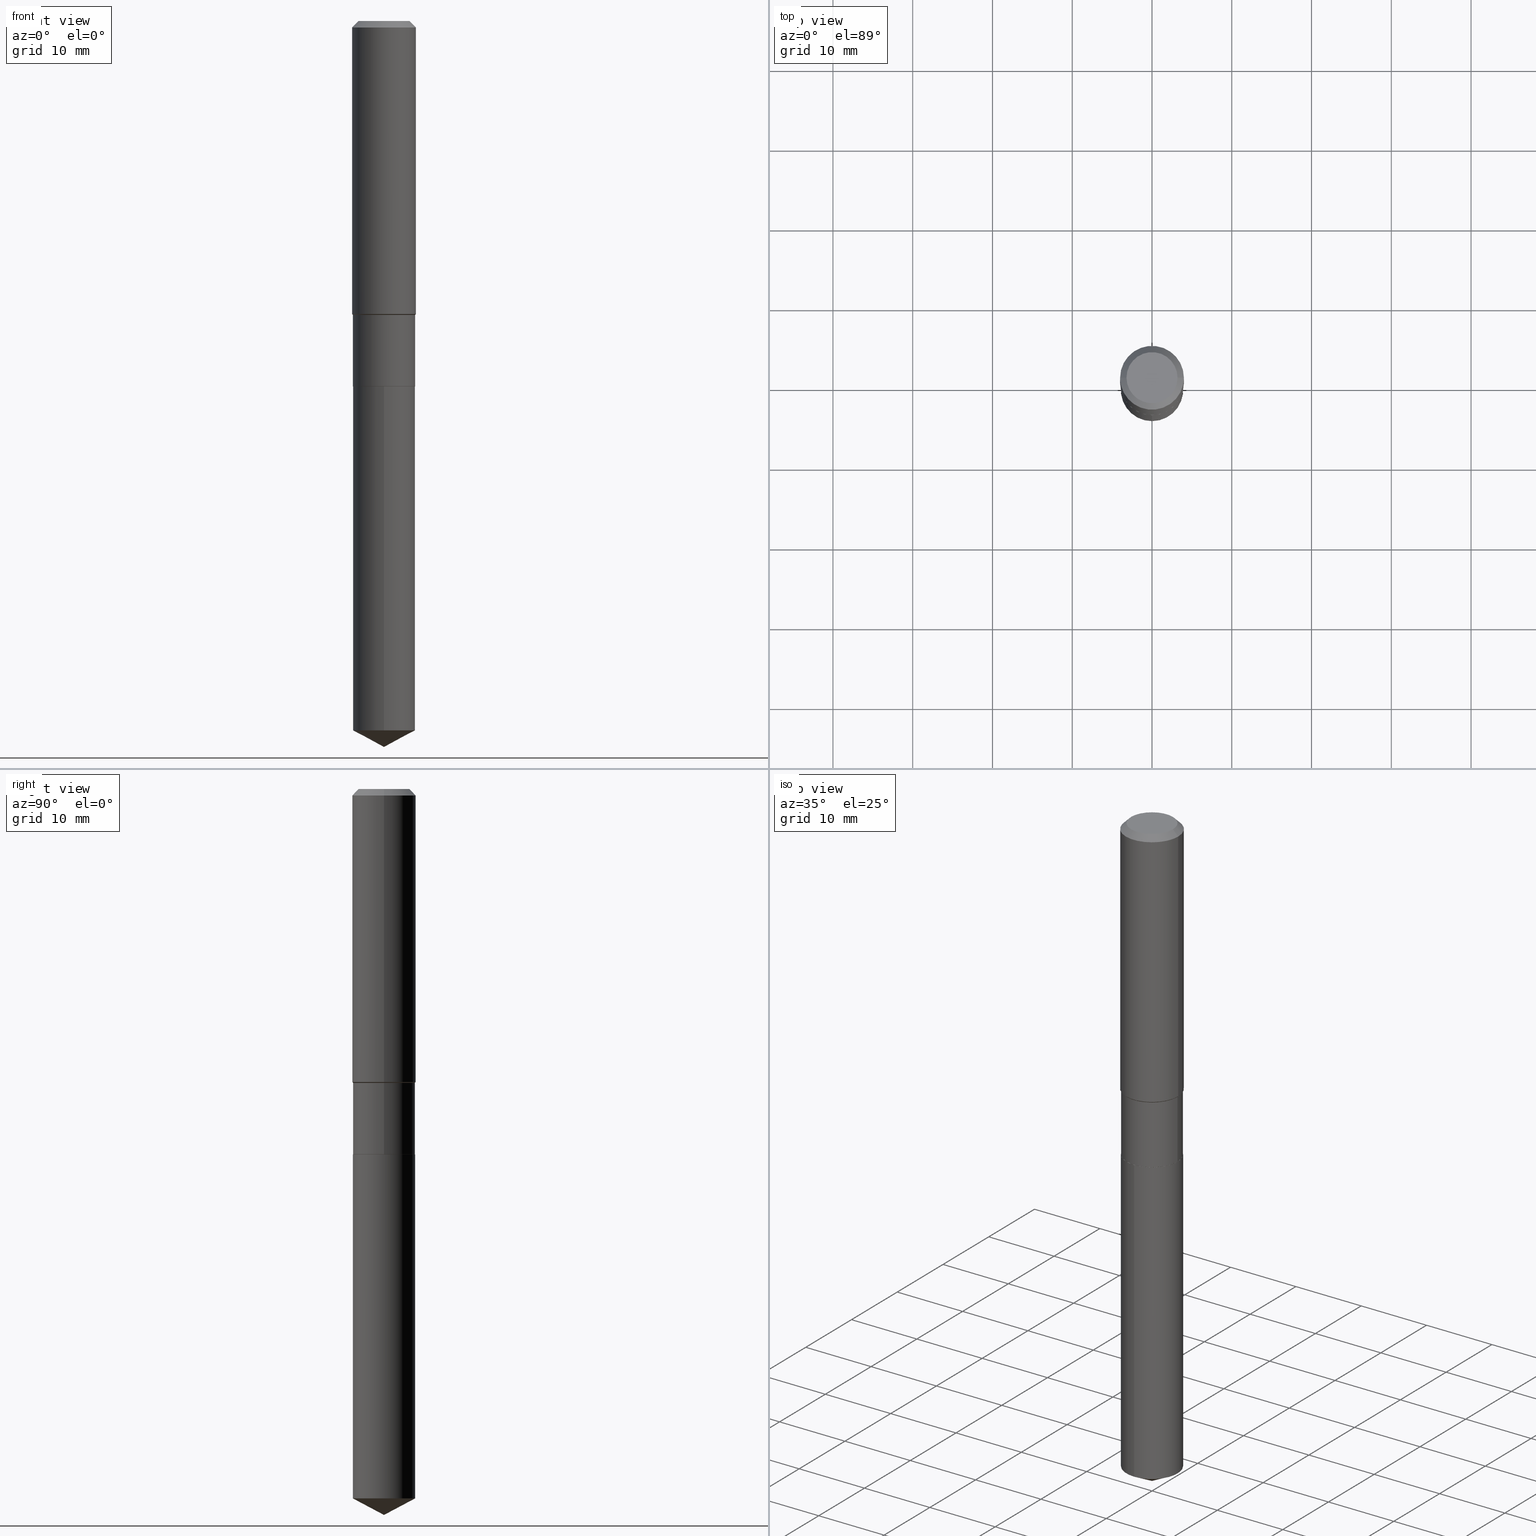
[diagram: canonical four-view strip — front | top / right | iso, engineering-drawing reading convention]
A machine part, canonical four-view strip (front | top / right | iso — engineering-drawing reading convention). The complete STEP part file that produces these views, byte-faithful:
ISO-10303-21;
HEADER;
FILE_DESCRIPTION (( 'STEP AP203' ),
    '1' );
FILE_NAME ('65048.STEP',
    '2024-04-24T20:09:53',
    ( '' ),
    ( '' ),
    'SwSTEP 2.0',
    'SolidWorks 2023',
    '' );
FILE_SCHEMA (( 'CONFIG_CONTROL_DESIGN' ));
ENDSEC;

DATA;
#1 = CARTESIAN_POINT ( 'NONE',  ( 8.761380437849166344E-29, -1.250893112933926441E-14, -3.582699999999999996 ) ) ;
#2 = MECHANICAL_CONTEXT ( 'NONE', #141, 'mechanical' ) ;
#3 = AXIS2_PLACEMENT_3D ( 'NONE', #340, #295, #257 ) ;
#4 = FACE_OUTER_BOUND ( 'NONE', #106, .T. ) ;
#5 = CARTESIAN_POINT ( 'NONE',  ( 0.1575000000000001676, -6.148673211769718717E-15, -1.446050000000000058 ) ) ;
#6 = DIRECTION ( 'NONE',  ( -2.445496404088996242E-29, 3.491441817074043371E-15, 1.000000000000000000 ) ) ;
#7 = VECTOR ( 'NONE', #409, 39.37007874015748143 ) ;
#8 = AXIS2_PLACEMENT_3D ( 'NONE', #165, #206, #19 ) ;
#9 = CARTESIAN_POINT ( 'NONE',  ( 8.761479966929646186E-29, -1.250878859803117568E-14, -3.582699999999999996 ) ) ;
#10 = LINE ( 'NONE', #465, #388 ) ;
#11 = LINE ( 'NONE', #198, #334 ) ;
#12 = ADVANCED_FACE ( 'NONE', ( #36 ), #442, .T. ) ;
#13 = CIRCLE ( 'NONE', #239, 0.1575000000000001676 ) ;
#14 = DIRECTION ( 'NONE',  ( 1.000000000000000000, -6.982962677686265922E-15, 0.000000000000000000 ) ) ;
#15 = EDGE_CURVE ( 'NONE', #282, #144, #66, .T. ) ;
#16 = DIRECTION ( 'NONE',  ( -2.445468806185136597E-29, 3.491481338843145583E-15, 1.000000000000000000 ) ) ;
#17 = DESIGN_CONTEXT ( 'detailed design', #399, 'design' ) ;
#18 = AXIS2_PLACEMENT_3D ( 'NONE', #125, #16, #315 ) ;
#19 = DIRECTION ( 'NONE',  ( -6.982962677686265133E-15, -1.000000000000000000, 3.558252026915353702E-15 ) ) ;
#20 = DIRECTION ( 'NONE',  ( -1.000000000000000000, 6.982962677686265922E-15, 0.000000000000000000 ) ) ;
#21 = VECTOR ( 'NONE', #183, 39.37007874015748143 ) ;
#22 = VECTOR ( 'NONE', #300, 39.37007874015748143 ) ;
#23 = ORIENTED_EDGE ( 'NONE', *, *, #331, .F. ) ;
#24 = ORIENTED_EDGE ( 'NONE', *, *, #272, .T. ) ;
#25 =( NAMED_UNIT ( * ) PLANE_ANGLE_UNIT ( ) SI_UNIT ( $, .RADIAN. ) );
#26 = ORIENTED_EDGE ( 'NONE', *, *, #393, .F. ) ;
#27 = AXIS2_PLACEMENT_3D ( 'NONE', #80, #379, #44 ) ;
#28 = ORIENTED_EDGE ( 'NONE', *, *, #446, .T. ) ;
#29 = ORIENTED_EDGE ( 'NONE', *, *, #446, .F. ) ;
#30 = DATE_AND_TIME ( #254, #159 ) ;
#31 = AXIS2_PLACEMENT_3D ( 'NONE', #276, #351, #59 ) ;
#32 = VERTEX_POINT ( 'NONE', #226 ) ;
#33 = APPROVAL_DATE_TIME ( #30, #162 ) ;
#34 = DIRECTION ( 'NONE',  ( 1.000000000000000000, -6.982962677686267499E-15, 4.876176775795936353E-29 ) ) ;
#35 = EDGE_CURVE ( 'NONE', #477, #142, #291, .T. ) ;
#36 = FACE_OUTER_BOUND ( 'NONE', #332, .T. ) ;
#37 = VECTOR ( 'NONE', #448, 39.37007874015748143 ) ;
#38 = CARTESIAN_POINT ( 'NONE',  ( 4.409669351313038346E-29, -6.295839150201959750E-15, -1.803200000000000136 ) ) ;
#39 = CARTESIAN_POINT ( 'NONE',  ( 0.1530499999999999916, -7.364581588021842889E-15, -1.803200000000000136 ) ) ;
#40 = CARTESIAN_POINT ( 'NONE',  ( 0.000000000000000000, 0.000000000000000000, 0.000000000000000000 ) ) ;
#41 = ADVANCED_FACE ( 'NONE', ( #76 ), #222, .T. ) ;
#42 = DIRECTION ( 'NONE',  ( -2.445496404088996242E-29, 3.491441817074043371E-15, 1.000000000000000000 ) ) ;
#43 = AXIS2_PLACEMENT_3D ( 'NONE', #55, #204, #14 ) ;
#44 = DIRECTION ( 'NONE',  ( 1.000000000000000000, -6.982962677686265922E-15, 0.000000000000000000 ) ) ;
#45 = CC_DESIGN_PERSON_AND_ORGANIZATION_ASSIGNMENT ( #443, #78, ( #91 ) ) ;
#46 = DIRECTION ( 'NONE',  ( 1.000000000000000000, -6.982962677686269077E-15, 0.000000000000000000 ) ) ;
#47 = CARTESIAN_POINT ( 'NONE',  ( 0.000000000000000000, 0.000000000000000000, 0.000000000000000000 ) ) ;
#48 = DIRECTION ( 'NONE',  ( -2.445468806185136597E-29, 3.491481338843145583E-15, 1.000000000000000000 ) ) ;
#49 = CARTESIAN_POINT ( 'NONE',  ( 0.000000000000000000, 0.000000000000000000, 0.000000000000000000 ) ) ;
#50 = LINE ( 'NONE', #386, #130 ) ;
#51 = CARTESIAN_POINT ( 'NONE',  ( -0.1260000000000000009, 9.348441284752484904E-16, 3.860086710906114178E-18 ) ) ;
#52 = FACE_OUTER_BOUND ( 'NONE', #435, .T. ) ;
#53 = CARTESIAN_POINT ( 'NONE',  ( -1.072233919158640357E-15, -0.1535500000000122045, -3.501056016768379742 ) ) ;
#54 = CC_DESIGN_PERSON_AND_ORGANIZATION_ASSIGNMENT ( #143, #338, ( #381 ) ) ;
#55 = CARTESIAN_POINT ( 'NONE',  ( 7.703226739483226971E-31, -1.099816621735597538E-16, -0.03150000000000019451 ) ) ;
#56 = ADVANCED_FACE ( 'NONE', ( #114 ), #324, .T. ) ;
#57 = DIRECTION ( 'NONE',  ( -2.445468806185136597E-29, 3.491481338843145583E-15, 1.000000000000000000 ) ) ;
#58 = CONICAL_SURFACE ( 'NONE', #271, 0.1535499999999999365, 0.7853981633974634891 ) ;
#59 = DIRECTION ( 'NONE',  ( -1.000000000000000000, 6.982962677686265922E-15, 0.000000000000000000 ) ) ;
#60 = EDGE_LOOP ( 'NONE', ( #174, #176, #487, #180 ) ) ;
#61 = EDGE_LOOP ( 'NONE', ( #105, #208, #164, #323 ) ) ;
#62 = EDGE_CURVE ( 'NONE', #209, #474, #434, .T. ) ;
#63 = ORIENTED_EDGE ( 'NONE', *, *, #308, .T. ) ;
#64 = DIMENSIONAL_EXPONENTS ( 1.000000000000000000, 0.000000000000000000, 0.000000000000000000, 0.000000000000000000, 0.000000000000000000, 0.000000000000000000, 0.000000000000000000 ) ;
#65 = ORIENTED_EDGE ( 'NONE', *, *, #405, .F. ) ;
#66 = CIRCLE ( 'NONE', #297, 0.1535499999999999921 ) ;
#67 = ORIENTED_EDGE ( 'NONE', *, *, #321, .T. ) ;
#68 = EDGE_CURVE ( 'NONE', #137, #99, #344, .T. ) ;
#69 = ORIENTED_EDGE ( 'NONE', *, *, #157, .T. ) ;
#70 = DATE_AND_TIME ( #287, #214 ) ;
#71 = LOCAL_TIME ( 16, 9, 53.00000000000000000, #107 ) ;
#72 = ORIENTED_EDGE ( 'NONE', *, *, #228, .F. ) ;
#73 = MANIFOLD_SOLID_BREP ( 'Body-Move/Copy2[2]', #248 ) ;
#74 = DIRECTION ( 'NONE',  ( -2.445468806185136877E-29, 3.491481338843145188E-15, 1.000000000000000000 ) ) ;
#75 = AXIS2_PLACEMENT_3D ( 'NONE', #230, #6, #305 ) ;
#76 = FACE_OUTER_BOUND ( 'NONE', #359, .T. ) ;
#77 = VECTOR ( 'NONE', #79, 39.37007874015748143 ) ;
#78 = PERSON_AND_ORGANIZATION_ROLE ( 'design_supplier' ) ;
#79 = DIRECTION ( 'NONE',  ( 0.7071067811866199593, -2.468850131083015945E-15, 0.7071067811864750752 ) ) ;
#80 = CARTESIAN_POINT ( 'NONE',  ( 4.409669351313038346E-29, -6.295839150201959750E-15, -1.803200000000000136 ) ) ;
#81 = APPROVAL_DATE_TIME ( #417, #100 ) ;
#82 = CARTESIAN_POINT ( 'NONE',  ( 0.000000000000000000, 0.000000000000000000, 0.000000000000000000 ) ) ;
#83 = CARTESIAN_POINT ( 'NONE',  ( 4.409669351313038346E-29, -6.295839150201959750E-15, -1.803200000000000136 ) ) ;
#84 = APPROVAL_ROLE ( '' ) ;
#85 = EDGE_CURVE ( 'NONE', #99, #158, #221, .T. ) ;
#86 = LINE ( 'NONE', #255, #273 ) ;
#87 = DIRECTION ( 'NONE',  ( -2.445468806185136597E-29, 3.491481338843145583E-15, 1.000000000000000000 ) ) ;
#88 = CARTESIAN_POINT ( 'NONE',  ( 7.703226739483226971E-31, -1.099816621735597538E-16, -0.03150000000000019451 ) ) ;
#89 = FACE_OUTER_BOUND ( 'NONE', #362, .T. ) ;
#90 = DIRECTION ( 'NONE',  ( -2.445468806185136597E-29, 3.491481338843145583E-15, 1.000000000000000000 ) ) ;
#91 = PRODUCT_DEFINITION_FORMATION_WITH_SPECIFIED_SOURCE ( 'ANY', '', #197, .NOT_KNOWN. ) ;
#92 = CARTESIAN_POINT ( 'NONE',  ( -1.072233919158681970E-15, -0.1535500000000062926, -1.803199999999999470 ) ) ;
#93 = DIRECTION ( 'NONE',  ( -6.982962677686266711E-15, -1.000000000000000000, 3.541896320645574279E-15 ) ) ;
#94 = ADVANCED_FACE ( 'NONE', ( #420 ), #384, .T. ) ;
#95 = AXIS2_PLACEMENT_3D ( 'NONE', #270, #428, #423 ) ;
#96 = FACE_OUTER_BOUND ( 'NONE', #470, .T. ) ;
#97 = CARTESIAN_POINT ( 'NONE',  ( 0.1575000000000000011, -1.209798283909146741E-15, -0.03150000000000019451 ) ) ;
#98 = VERTEX_POINT ( 'NONE', #5 ) ;
#99 = VERTEX_POINT ( 'NONE', #53 ) ;
#100 = APPROVAL ( #261, 'UNSPECIFIED' ) ;
#101 = EDGE_LOOP ( 'NONE', ( #357, #231, #207, #23 ) ) ;
#102 = AXIS2_PLACEMENT_3D ( 'NONE', #313, #57, #241 ) ;
#103 = ORIENTED_EDGE ( 'NONE', *, *, #240, .T. ) ;
#104 = AXIS2_PLACEMENT_3D ( 'NONE', #83, #190, #184 ) ;
#105 = ORIENTED_EDGE ( 'NONE', *, *, #129, .F. ) ;
#106 = EDGE_LOOP ( 'NONE', ( #280, #138 ) ) ;
#107 = COORDINATED_UNIVERSAL_TIME_OFFSET ( 5, 0, .BEHIND. ) ;
#108 =( GEOMETRIC_REPRESENTATION_CONTEXT ( 3 ) GLOBAL_UNCERTAINTY_ASSIGNED_CONTEXT ( ( #322 ) ) GLOBAL_UNIT_ASSIGNED_CONTEXT ( ( #281, #25, #408 ) ) REPRESENTATION_CONTEXT ( 'NONE', 'WORKASPACE' ) );
#109 = CARTESIAN_POINT ( 'NONE',  ( -0.1535499999999999921, -4.587332304667917085E-15, -1.802700000000000191 ) ) ;
#110 = VERTEX_POINT ( 'NONE', #264 ) ;
#111 = DIRECTION ( 'NONE',  ( 1.000000000000000000, 0.000000000000000000, 0.000000000000000000 ) ) ;
#112 = CARTESIAN_POINT ( 'NONE',  ( 0.1530499999999999916, -7.364581588021842889E-15, -1.803200000000000136 ) ) ;
#113 = CIRCLE ( 'NONE', #413, 0.1535499999999999921 ) ;
#114 = FACE_OUTER_BOUND ( 'NONE', #101, .T. ) ;
#115 = COORDINATED_UNIVERSAL_TIME_OFFSET ( 5, 0, .BEHIND. ) ;
#116 = DIRECTION ( 'NONE',  ( -2.445496404088996242E-29, 3.491441817074043371E-15, 1.000000000000000000 ) ) ;
#117 = DIRECTION ( 'NONE',  ( -2.445496404088996242E-29, 3.491441817074043371E-15, 1.000000000000000000 ) ) ;
#118 = SHAPE_DEFINITION_REPRESENTATION ( #486, #169 ) ;
#119 = CC_DESIGN_APPROVAL ( #100, ( #429 ) ) ;
#120 = CARTESIAN_POINT ( 'NONE',  ( 4.408446616909946105E-29, -6.294093409532539036E-15, -1.802700000000000191 ) ) ;
#121 = ORIENTED_EDGE ( 'NONE', *, *, #293, .F. ) ;
#122 = LINE ( 'NONE', #160, #352 ) ;
#123 = DIRECTION ( 'NONE',  ( -2.445468806185136597E-29, 3.491481338843145583E-15, 1.000000000000000000 ) ) ;
#124 = DIRECTION ( 'NONE',  ( -2.445468806185136597E-29, 3.491481338843145583E-15, 1.000000000000000000 ) ) ;
#125 = CARTESIAN_POINT ( 'NONE',  ( 3.545929768968448850E-29, -5.062647941322561509E-15, -1.450000000000000178 ) ) ;
#126 = CIRCLE ( 'NONE', #18, 0.1535499999999999365 ) ;
#127 = AXIS2_PLACEMENT_3D ( 'NONE', #263, #116, #375 ) ;
#128 = DIRECTION ( 'NONE',  ( 6.982962677686265922E-15, 1.000000000000000000, -3.491441817074043765E-15 ) ) ;
#129 = EDGE_CURVE ( 'NONE', #474, #336, #50, .T. ) ;
#130 = VECTOR ( 'NONE', #461, 39.37007874015748143 ) ;
#131 = FACE_OUTER_BOUND ( 'NONE', #459, .T. ) ;
#132 = EDGE_CURVE ( 'NONE', #440, #477, #310, .T. ) ;
#133 = DIRECTION ( 'NONE',  ( 0.7071067811865452413, -7.319954787623248157E-15, -0.7071067811865497932 ) ) ;
#134 = APPROVAL_PERSON_ORGANIZATION ( #152, #100, #451 ) ;
#135 = ORIENTED_EDGE ( 'NONE', *, *, #240, .F. ) ;
#136 = EDGE_CURVE ( 'NONE', #336, #402, #113, .T. ) ;
#137 = VERTEX_POINT ( 'NONE', #9 ) ;
#138 = ORIENTED_EDGE ( 'NONE', *, *, #479, .F. ) ;
#139 = EDGE_CURVE ( 'NONE', #99, #144, #11, .T. ) ;
#140 = ORIENTED_EDGE ( 'NONE', *, *, #157, .F. ) ;
#141 = APPLICATION_CONTEXT ( 'configuration controlled 3d designs of mechanical parts and assemblies' ) ;
#142 = VERTEX_POINT ( 'NONE', #267 ) ;
#143 = PERSON_AND_ORGANIZATION ( #306, #419 ) ;
#144 = VERTEX_POINT ( 'NONE', #92 ) ;
#145 = CARTESIAN_POINT ( 'NONE',  ( 0.000000000000000000, 0.000000000000000000, 0.000000000000000000 ) ) ;
#146 = LINE ( 'NONE', #193, #7 ) ;
#147 = DIRECTION ( 'NONE',  ( -2.445496404088996242E-29, 3.491441817074043371E-15, 1.000000000000000000 ) ) ;
#148 = CALENDAR_DATE ( 2024, 24, 4 ) ;
#149 = CC_DESIGN_APPROVAL ( #162, ( #381 ) ) ;
#150 = LINE ( 'NONE', #220, #21 ) ;
#151 = ORIENTED_EDGE ( 'NONE', *, *, #15, .F. ) ;
#152 = PERSON_AND_ORGANIZATION ( #306, #419 ) ;
#153 = CARTESIAN_POINT ( 'NONE',  ( 4.409669351313038346E-29, -6.295839150201959750E-15, -1.803200000000000136 ) ) ;
#154 = ORIENTED_EDGE ( 'NONE', *, *, #132, .T. ) ;
#155 = APPLICATION_PROTOCOL_DEFINITION ( 'international standard', 'config_control_design', 1994, #399 ) ;
#156 = CARTESIAN_POINT ( 'NONE',  ( 3.536270167184016952E-29, -5.048856590034130447E-15, -1.446050000000000058 ) ) ;
#157 = EDGE_CURVE ( 'NONE', #98, #175, #13, .T. ) ;
#158 = VERTEX_POINT ( 'NONE', #161 ) ;
#159 = LOCAL_TIME ( 16, 9, 53.00000000000000000, #367 ) ;
#160 = CARTESIAN_POINT ( 'NONE',  ( 1.091038370759677758E-15, 0.1535499999999936915, -1.803200000000000580 ) ) ;
#161 = CARTESIAN_POINT ( 'NONE',  ( 1.091038370759719173E-15, 0.1535499999999877796, -3.501056016768380630 ) ) ;
#162 = APPROVAL ( #333, 'UNSPECIFIED' ) ;
#163 = DIRECTION ( 'NONE',  ( 1.000000000000000000, -6.982962677686269077E-15, 0.000000000000000000 ) ) ;
#164 = ORIENTED_EDGE ( 'NONE', *, *, #192, .T. ) ;
#165 = CARTESIAN_POINT ( 'NONE',  ( 8.561770134980978882E-29, -1.222380464651785151E-14, -3.501056016768380186 ) ) ;
#166 = DIRECTION ( 'NONE',  ( 1.000000000000000000, -6.982962677686265922E-15, 4.876281427513067258E-29 ) ) ;
#167 = CIRCLE ( 'NONE', #102, 0.1575000000000000011 ) ;
#168 = CONICAL_SURFACE ( 'NONE', #31, 0.1575000000000000011, 0.7853981633974450594 ) ;
#169 = ADVANCED_BREP_SHAPE_REPRESENTATION ( '65048', ( #396, #73, #341 ), #108 ) ;
#170 = DIRECTION ( 'NONE',  ( 2.445468806185136597E-29, -3.491481338843145583E-15, -1.000000000000000000 ) ) ;
#171 = AXIS2_PLACEMENT_3D ( 'NONE', #460, #481, #418 ) ;
#172 = CLOSED_SHELL ( 'NONE', ( #191, #365, #327, #217, #353 ) ) ;
#173 = DIRECTION ( 'NONE',  ( -2.445468806185136877E-29, 3.491481338843145188E-15, 1.000000000000000000 ) ) ;
#174 = ORIENTED_EDGE ( 'NONE', *, *, #321, .F. ) ;
#175 = VERTEX_POINT ( 'NONE', #350 ) ;
#176 = ORIENTED_EDGE ( 'NONE', *, *, #136, .T. ) ;
#177 = AXIS2_PLACEMENT_3D ( 'NONE', #40, #416, #187 ) ;
#178 = ADVANCED_FACE ( 'NONE', ( #89 ), #236, .F. ) ;
#179 = ORIENTED_EDGE ( 'NONE', *, *, #299, .F. ) ;
#180 = ORIENTED_EDGE ( 'NONE', *, *, #421, .F. ) ;
#181 = AXIS2_PLACEMENT_3D ( 'NONE', #235, #269, #93 ) ;
#182 = ORIENTED_EDGE ( 'NONE', *, *, #256, .F. ) ;
#183 = DIRECTION ( 'NONE',  ( -0.7071067811865582309, 7.493145998870392025E-15, 0.7071067811865368036 ) ) ;
#184 = DIRECTION ( 'NONE',  ( 1.000000000000000000, -6.982962677686265922E-15, 0.000000000000000000 ) ) ;
#185 = APPROVAL_ROLE ( '' ) ;
#186 = DIRECTION ( 'NONE',  ( -2.445468806185136597E-29, 3.491481338843145583E-15, 1.000000000000000000 ) ) ;
#187 = DIRECTION ( 'NONE',  ( 1.000000000000000000, -6.982962677686266711E-15, 4.876176775795935793E-29 ) ) ;
#188 = CALENDAR_DATE ( 2024, 24, 4 ) ;
#189 = DIRECTION ( 'NONE',  ( -2.445496404088996242E-29, 3.491441817074043765E-15, 1.000000000000000000 ) ) ;
#190 = DIRECTION ( 'NONE',  ( -2.445468806185136597E-29, 3.491481338843145583E-15, 1.000000000000000000 ) ) ;
#191 = ADVANCED_FACE ( 'NONE', ( #52 ), #464, .T. ) ;
#192 = EDGE_CURVE ( 'NONE', #209, #402, #216, .T. ) ;
#193 = CARTESIAN_POINT ( 'NONE',  ( 0.1575000000000000844, -1.099816621735587677E-15, 7.679978421878603638E-30 ) ) ;
#194 = DIRECTION ( 'NONE',  ( -2.445468806185136597E-29, 3.491481338843145583E-15, 1.000000000000000000 ) ) ;
#195 = DIRECTION ( 'NONE',  ( -2.445468806185136597E-29, 3.491481338843145583E-15, 1.000000000000000000 ) ) ;
#196 = DIRECTION ( 'NONE',  ( 1.000000000000000000, -6.982962677686265922E-15, 4.876281427513067258E-29 ) ) ;
#197 = PRODUCT ( '65048', '65048', '', ( #2 ) ) ;
#198 = CARTESIAN_POINT ( 'NONE',  ( -1.072233919158681970E-15, -0.1535500000000062926, -1.803199999999999470 ) ) ;
#199 = DIRECTION ( 'NONE',  ( 1.000000000000000000, -6.982962677686265922E-15, 0.000000000000000000 ) ) ;
#200 = CIRCLE ( 'NONE', #171, 0.1535499999999999365 ) ;
#201 = DIRECTION ( 'NONE',  ( -2.445468806185136597E-29, 3.491481338843145583E-15, 1.000000000000000000 ) ) ;
#202 = AXIS2_PLACEMENT_3D ( 'NONE', #82, #294, #490 ) ;
#203 = VECTOR ( 'NONE', #74, 39.37007874015748143 ) ;
#204 = DIRECTION ( 'NONE',  ( -2.445468806185136597E-29, 3.491481338843145583E-15, 1.000000000000000000 ) ) ;
#205 = APPROVAL_PERSON_ORGANIZATION ( #404, #162, #84 ) ;
#206 = DIRECTION ( 'NONE',  ( -2.445496404088996242E-29, 3.491441817074043371E-15, 1.000000000000000000 ) ) ;
#207 = ORIENTED_EDGE ( 'NONE', *, *, #228, .T. ) ;
#208 = ORIENTED_EDGE ( 'NONE', *, *, #479, .T. ) ;
#209 = VERTEX_POINT ( 'NONE', #39 ) ;
#210 = ORIENTED_EDGE ( 'NONE', *, *, #256, .T. ) ;
#211 = EDGE_LOOP ( 'NONE', ( #278, #472, #65 ) ) ;
#212 = ADVANCED_FACE ( 'NONE', ( #378 ), #385, .T. ) ;
#213 = ORIENTED_EDGE ( 'NONE', *, *, #337, .T. ) ;
#214 = LOCAL_TIME ( 16, 9, 53.00000000000000000, #330 ) ;
#215 = APPROVAL_STATUS ( 'not_yet_approved' ) ;
#216 = LINE ( 'NONE', #112, #77 ) ;
#217 = ADVANCED_FACE ( 'NONE', ( #290 ), #425, .T. ) ;
#218 = ORIENTED_EDGE ( 'NONE', *, *, #410, .F. ) ;
#219 = PERSON_AND_ORGANIZATION ( #306, #419 ) ;
#220 = CARTESIAN_POINT ( 'NONE',  ( -0.1535499999999999365, -3.971609570562927927E-15, -1.450000000000000178 ) ) ;
#221 = CIRCLE ( 'NONE', #288, 0.1535500000000000198 ) ;
#222 = CYLINDRICAL_SURFACE ( 'NONE', #177, 0.1535499999999999643 ) ;
#223 = PERSON_AND_ORGANIZATION ( #306, #419 ) ;
#224 = CIRCLE ( 'NONE', #355, 0.1535499999999999921 ) ;
#225 = PLANE ( 'NONE',  #457 ) ;
#226 = CARTESIAN_POINT ( 'NONE',  ( 0.1535499999999999365, -6.134881860481286866E-15, -1.450000000000000178 ) ) ;
#227 = SECURITY_CLASSIFICATION_LEVEL ( 'unclassified' ) ;
#228 = EDGE_CURVE ( 'NONE', #32, #98, #86, .T. ) ;
#229 = CIRCLE ( 'NONE', #438, 0.1530499999999999916 ) ;
#230 = CARTESIAN_POINT ( 'NONE',  ( 4.409669351313038346E-29, -6.295839150201959750E-15, -1.803200000000000136 ) ) ;
#231 = ORIENTED_EDGE ( 'NONE', *, *, #421, .T. ) ;
#232 = FACE_OUTER_BOUND ( 'NONE', #61, .T. ) ;
#233 = CARTESIAN_POINT ( 'NONE',  ( 8.761480839682197803E-29, -1.250878859803117410E-14, -3.582699999999999996 ) ) ;
#234 = CARTESIAN_POINT ( 'NONE',  ( -9.439721640706201686E-47, 1.347742071746726764E-32, 3.860086710912459732E-18 ) ) ;
#235 = CARTESIAN_POINT ( 'NONE',  ( -8.751795578536634995E-28, 1.249494793911983816E-13, 35.78737874015747877 ) ) ;
#236 = PLANE ( 'NONE',  #462 ) ;
#237 = DIRECTION ( 'NONE',  ( -2.445496404088996242E-29, 3.491441817074043765E-15, 1.000000000000000000 ) ) ;
#238 = LINE ( 'NONE', #391, #380 ) ;
#239 = AXIS2_PLACEMENT_3D ( 'NONE', #311, #124, #390 ) ;
#240 = EDGE_CURVE ( 'NONE', #158, #282, #122, .T. ) ;
#241 = DIRECTION ( 'NONE',  ( 1.000000000000000000, -6.982962677686265922E-15, 0.000000000000000000 ) ) ;
#242 = LENGTH_MEASURE_WITH_UNIT ( LENGTH_MEASURE( 0.02539999999999999897 ), #371 );
#243 = CC_DESIGN_PERSON_AND_ORGANIZATION_ASSIGNMENT ( #223, #455, ( #429 ) ) ;
#244 = ORIENTED_EDGE ( 'NONE', *, *, #436, .F. ) ;
#245 = ORIENTED_EDGE ( 'NONE', *, *, #400, .F. ) ;
#246 = ORIENTED_EDGE ( 'NONE', *, *, #400, .T. ) ;
#247 = ORIENTED_EDGE ( 'NONE', *, *, #358, .T. ) ;
#248 = CLOSED_SHELL ( 'NONE', ( #12, #476, #94, #453, #41, #274, #56, #212, #364, #178, #268, #489 ) ) ;
#249 = ORIENTED_EDGE ( 'NONE', *, *, #358, .F. ) ;
#250 = ORIENTED_EDGE ( 'NONE', *, *, #139, .F. ) ;
#251 = CIRCLE ( 'NONE', #43, 0.1575000000000000011 ) ;
#252 = LINE ( 'NONE', #233, #401 ) ;
#253 = ORIENTED_EDGE ( 'NONE', *, *, #192, .F. ) ;
#254 = CALENDAR_DATE ( 2024, 24, 4 ) ;
#255 = CARTESIAN_POINT ( 'NONE',  ( 0.1535499999999999365, -6.134881860481286866E-15, -1.450000000000000178 ) ) ;
#256 = EDGE_CURVE ( 'NONE', #32, #110, #200, .T. ) ;
#257 = DIRECTION ( 'NONE',  ( 1.000000000000000000, -6.982962677686265133E-15, 0.000000000000000000 ) ) ;
#258 = CALENDAR_DATE ( 2024, 24, 4 ) ;
#259 = DIRECTION ( 'NONE',  ( 1.000000000000000000, -6.982962677686265922E-15, 4.876176775795935793E-29 ) ) ;
#260 = DIRECTION ( 'NONE',  ( -6.982962677686265133E-15, -1.000000000000000000, 3.558252026915353702E-15 ) ) ;
#261 = APPROVAL_STATUS ( 'not_yet_approved' ) ;
#262 = LOCAL_TIME ( 16, 9, 53.00000000000000000, #115 ) ;
#263 = CARTESIAN_POINT ( 'NONE',  ( -8.751795578536634995E-28, 1.249494793911983816E-13, 35.78737874015747877 ) ) ;
#264 = CARTESIAN_POINT ( 'NONE',  ( -0.1535499999999999365, -4.587332304667917085E-15, -1.450000000000000178 ) ) ;
#265 = AXIS2_PLACEMENT_3D ( 'NONE', #156, #186, #339 ) ;
#266 = DIRECTION ( 'NONE',  ( -2.438088387897960049E-29, 3.491481338843145188E-15, 1.000000000000000000 ) ) ;
#267 = CARTESIAN_POINT ( 'NONE',  ( -0.1575000000000000011, -1.460314317281686560E-15, -0.03150000000000019451 ) ) ;
#268 = ADVANCED_FACE ( 'NONE', ( #4 ), #372, .F. ) ;
#269 = DIRECTION ( 'NONE',  ( -2.445496404088996242E-29, 3.491441817074043371E-15, 1.000000000000000000 ) ) ;
#270 = CARTESIAN_POINT ( 'NONE',  ( 4.409669351313038346E-29, -6.295839150201959750E-15, -1.803200000000000136 ) ) ;
#271 = AXIS2_PLACEMENT_3D ( 'NONE', #314, #90, #275 ) ;
#272 = EDGE_CURVE ( 'NONE', #110, #175, #150, .T. ) ;
#273 = VECTOR ( 'NONE', #347, 39.37007874015748143 ) ;
#274 = ADVANCED_FACE ( 'NONE', ( #298 ), #343, .T. ) ;
#275 = DIRECTION ( 'NONE',  ( 1.000000000000000000, -6.982962677686265133E-15, 0.000000000000000000 ) ) ;
#276 = CARTESIAN_POINT ( 'NONE',  ( 7.703226739483226971E-31, -1.099816621735597538E-16, -0.03150000000000019451 ) ) ;
#277 = CIRCLE ( 'NONE', #8, 0.1535500000000000198 ) ;
#278 = ORIENTED_EDGE ( 'NONE', *, *, #337, .F. ) ;
#279 = AXIS2_PLACEMENT_3D ( 'NONE', #153, #266, #259 ) ;
#280 = ORIENTED_EDGE ( 'NONE', *, *, #62, .F. ) ;
#281 =( CONVERSION_BASED_UNIT ( 'INCH', #242 ) LENGTH_UNIT ( ) NAMED_UNIT ( #64 ) );
#282 = VERTEX_POINT ( 'NONE', #449 ) ;
#283 = PRODUCT_RELATED_PRODUCT_CATEGORY ( 'detail', '', ( #197 ) ) ;
#284 = AXIS2_PLACEMENT_3D ( 'NONE', #38, #48, #484 ) ;
#285 = ORIENTED_EDGE ( 'NONE', *, *, #15, .T. ) ;
#286 = ORIENTED_EDGE ( 'NONE', *, *, #393, .T. ) ;
#287 = CALENDAR_DATE ( 2024, 24, 4 ) ;
#288 = AXIS2_PLACEMENT_3D ( 'NONE', #454, #117, #260 ) ;
#289 = EDGE_LOOP ( 'NONE', ( #373, #213, #444 ) ) ;
#290 = FACE_OUTER_BOUND ( 'NONE', #433, .T. ) ;
#291 = LINE ( 'NONE', #450, #37 ) ;
#292 = DATE_TIME_ROLE ( 'creation_date' ) ;
#293 = EDGE_CURVE ( 'NONE', #144, #282, #427, .T. ) ;
#294 = DIRECTION ( 'NONE',  ( -2.445468806185136597E-29, 3.491481338843145583E-15, 1.000000000000000000 ) ) ;
#295 = DIRECTION ( 'NONE',  ( -2.445468806185136597E-29, 3.491481338843145583E-15, 1.000000000000000000 ) ) ;
#296 = PERSON_AND_ORGANIZATION ( #306, #419 ) ;
#297 = AXIS2_PLACEMENT_3D ( 'NONE', #369, #147, #411 ) ;
#298 = FACE_OUTER_BOUND ( 'NONE', #60, .T. ) ;
#299 = EDGE_CURVE ( 'NONE', #402, #336, #224, .T. ) ;
#300 = DIRECTION ( 'NONE',  ( -6.165590087286828929E-15, -0.8829475928589255451, 0.4694715627858933038 ) ) ;
#301 = APPLICATION_PROTOCOL_DEFINITION ( 'international standard', 'config_control_design', 1994, #141 ) ;
#302 = FACE_OUTER_BOUND ( 'NONE', #437, .T. ) ;
#303 = ORIENTED_EDGE ( 'NONE', *, *, #85, .T. ) ;
#304 = CIRCLE ( 'NONE', #265, 0.1575000000000001676 ) ;
#305 = DIRECTION ( 'NONE',  ( -6.982962677686266711E-15, -1.000000000000000000, 3.558252026915354491E-15 ) ) ;
#306 = PERSON ( 'UNSPECIFIED', 'UNSPECIFIED', 'UNSPECIFIED', ('UNSPECIFIED'), ('UNSPECIFIED'), ('UNSPECIFIED') ) ;
#307 = CARTESIAN_POINT ( 'NONE',  ( 4.408446616909946105E-29, -6.294093409532539036E-15, -1.802700000000000191 ) ) ;
#308 = EDGE_CURVE ( 'NONE', #98, #441, #146, .T. ) ;
#309 = CARTESIAN_POINT ( 'NONE',  ( 0.1535499999999999921, -7.366327328691265182E-15, -1.802700000000000191 ) ) ;
#310 = CIRCLE ( 'NONE', #424, 0.1260000000000000009 ) ;
#311 = CARTESIAN_POINT ( 'NONE',  ( 3.536270167184016952E-29, -5.048856590034130447E-15, -1.446050000000000058 ) ) ;
#312 = CC_DESIGN_DATE_AND_TIME_ASSIGNMENT ( #342, #488, ( #429 ) ) ;
#313 = CARTESIAN_POINT ( 'NONE',  ( 7.703226739483226971E-31, -1.099816621735597538E-16, -0.03150000000000019451 ) ) ;
#314 = CARTESIAN_POINT ( 'NONE',  ( 3.545929768968448850E-29, -5.062647941322561509E-15, -1.450000000000000178 ) ) ;
#315 = DIRECTION ( 'NONE',  ( 1.000000000000000000, -6.982962677686265133E-15, 0.000000000000000000 ) ) ;
#316 = AXIS2_PLACEMENT_3D ( 'NONE', #47, #194, #346 ) ;
#317 = FACE_OUTER_BOUND ( 'NONE', #318, .T. ) ;
#318 = EDGE_LOOP ( 'NONE', ( #398, #247, #246, #395 ) ) ;
#319 = CIRCLE ( 'NONE', #356, 0.1260000000000000009 ) ;
#320 = EDGE_LOOP ( 'NONE', ( #69, #286, #245, #403 ) ) ;
#321 = EDGE_CURVE ( 'NONE', #336, #110, #447, .T. ) ;
#322 = UNCERTAINTY_MEASURE_WITH_UNIT (LENGTH_MEASURE( 1.000000000000000082E-05 ), #281, 'distance_accuracy_value', 'NONE');
#323 = ORIENTED_EDGE ( 'NONE', *, *, #136, .F. ) ;
#324 = CONICAL_SURFACE ( 'NONE', #3, 0.1535499999999999365, 0.7853981633974634891 ) ;
#325 = CC_DESIGN_PERSON_AND_ORGANIZATION_ASSIGNMENT ( #445, #374, ( #197 ) ) ;
#326 = EDGE_LOOP ( 'NONE', ( #26, #482, #63, #218 ) ) ;
#327 = ADVANCED_FACE ( 'NONE', ( #452 ), #382, .T. ) ;
#328 = LOCAL_TIME ( 16, 9, 53.00000000000000000, #377 ) ;
#329 = ORIENTED_EDGE ( 'NONE', *, *, #405, .T. ) ;
#330 = COORDINATED_UNIVERSAL_TIME_OFFSET ( 5, 0, .BEHIND. ) ;
#331 = EDGE_CURVE ( 'NONE', #175, #98, #304, .T. ) ;
#332 = EDGE_LOOP ( 'NONE', ( #360, #473, #179, #253 ) ) ;
#333 = APPROVAL_STATUS ( 'not_yet_approved' ) ;
#334 = VECTOR ( 'NONE', #237, 39.37007874015748143 ) ;
#335 = DIRECTION ( 'NONE',  ( -2.445468806185136597E-29, 3.491481338843145583E-15, 1.000000000000000000 ) ) ;
#336 = VERTEX_POINT ( 'NONE', #109 ) ;
#337 = EDGE_CURVE ( 'NONE', #137, #158, #252, .T. ) ;
#338 = PERSON_AND_ORGANIZATION_ROLE ( 'creator' ) ;
#339 = DIRECTION ( 'NONE',  ( 1.000000000000000000, -6.982962677686267499E-15, 0.000000000000000000 ) ) ;
#340 = CARTESIAN_POINT ( 'NONE',  ( 3.545929768968448850E-29, -5.062647941322561509E-15, -1.450000000000000178 ) ) ;
#341 = AXIS2_PLACEMENT_3D ( 'NONE', #145, #483, #111 ) ;
#342 = DATE_AND_TIME ( #188, #328 ) ;
#343 = CYLINDRICAL_SURFACE ( 'NONE', #202, 0.1535499999999999643 ) ;
#344 = LINE ( 'NONE', #1, #22 ) ;
#345 = DIRECTION ( 'NONE',  ( -6.982962677686266711E-15, -1.000000000000000000, 3.558252026915354491E-15 ) ) ;
#346 = DIRECTION ( 'NONE',  ( 1.000000000000000000, -6.982962677686267499E-15, 4.876176775795936353E-29 ) ) ;
#347 = DIRECTION ( 'NONE',  ( 0.7071067811865582309, -2.468850131082369079E-15, 0.7071067811865368036 ) ) ;
#348 = CARTESIAN_POINT ( 'NONE',  ( -4.719860820353100843E-47, 6.738710358733633822E-33, 1.930043355456229866E-18 ) ) ;
#349 = CC_DESIGN_APPROVAL ( #361, ( #91 ) ) ;
#350 = CARTESIAN_POINT ( 'NONE',  ( -0.1575000000000001676, -3.929751781211971266E-15, -1.446050000000000058 ) ) ;
#351 = DIRECTION ( 'NONE',  ( 2.445468806185136597E-29, -3.491481338843145583E-15, -1.000000000000000000 ) ) ;
#352 = VECTOR ( 'NONE', #189, 39.37007874015748143 ) ;
#353 = ADVANCED_FACE ( 'NONE', ( #302 ), #225, .F. ) ;
#354 = AXIS2_PLACEMENT_3D ( 'NONE', #383, #42, #345 ) ;
#355 = AXIS2_PLACEMENT_3D ( 'NONE', #120, #335, #46 ) ;
#356 = AXIS2_PLACEMENT_3D ( 'NONE', #431, #201, #166 ) ;
#357 = ORIENTED_EDGE ( 'NONE', *, *, #272, .F. ) ;
#358 = EDGE_CURVE ( 'NONE', #440, #441, #469, .T. ) ;
#359 = EDGE_LOOP ( 'NONE', ( #407, #67, #182, #244 ) ) ;
#360 = ORIENTED_EDGE ( 'NONE', *, *, #62, .T. ) ;
#361 = APPROVAL ( #215, 'UNSPECIFIED' ) ;
#362 = EDGE_LOOP ( 'NONE', ( #28, #154 ) ) ;
#363 = AXIS2_PLACEMENT_3D ( 'NONE', #49, #195, #34 ) ;
#364 = ADVANCED_FACE ( 'NONE', ( #96 ), #458, .T. ) ;
#365 = ADVANCED_FACE ( 'NONE', ( #392 ), #432, .T. ) ;
#366 = ORIENTED_EDGE ( 'NONE', *, *, #139, .T. ) ;
#367 = COORDINATED_UNIVERSAL_TIME_OFFSET ( 5, 0, .BEHIND. ) ;
#368 = CONICAL_SURFACE ( 'NONE', #284, 0.1530499999999999916, 0.7853981633975507526 ) ;
#369 = CARTESIAN_POINT ( 'NONE',  ( 4.409669351313038346E-29, -6.295839150201959750E-15, -1.803200000000000136 ) ) ;
#370 = DATE_AND_TIME ( #148, #71 ) ;
#371 =( LENGTH_UNIT ( ) NAMED_UNIT ( * ) SI_UNIT ( $, .METRE. ) );
#372 = PLANE ( 'NONE',  #279 ) ;
#373 = ORIENTED_EDGE ( 'NONE', *, *, #68, .F. ) ;
#374 = PERSON_AND_ORGANIZATION_ROLE ( 'design_owner' ) ;
#375 = DIRECTION ( 'NONE',  ( -6.982962677686266711E-15, -1.000000000000000000, 3.541896320645574279E-15 ) ) ;
#376 = ORIENTED_EDGE ( 'NONE', *, *, #410, .T. ) ;
#377 = COORDINATED_UNIVERSAL_TIME_OFFSET ( 5, 0, .BEHIND. ) ;
#378 = FACE_OUTER_BOUND ( 'NONE', #326, .T. ) ;
#379 = DIRECTION ( 'NONE',  ( -2.445468806185136597E-29, 3.491481338843145583E-15, 1.000000000000000000 ) ) ;
#380 = VECTOR ( 'NONE', #173, 39.37007874015748143 ) ;
#381 = PRODUCT_DEFINITION ( 'UNKNOWN', '', #91, #17 ) ;
#382 = CONICAL_SURFACE ( 'NONE', #127, 74.04434902938325536, 1.082104136236484937 ) ;
#383 = CARTESIAN_POINT ( 'NONE',  ( 4.409669351313038346E-29, -6.295839150201959750E-15, -1.803200000000000136 ) ) ;
#384 = CYLINDRICAL_SURFACE ( 'NONE', #316, 0.1575000000000000844 ) ;
#385 = CYLINDRICAL_SURFACE ( 'NONE', #363, 0.1575000000000000844 ) ;
#386 = CARTESIAN_POINT ( 'NONE',  ( -0.1530499999999999916, -5.208353493121126278E-15, -1.803200000000000136 ) ) ;
#387 = DIRECTION ( 'NONE',  ( 2.438088387897960049E-29, -3.491481338843145188E-15, -1.000000000000000000 ) ) ;
#388 = VECTOR ( 'NONE', #466, 39.37007874015748143 ) ;
#389 = DIRECTION ( 'NONE',  ( -2.445468806185136597E-29, 3.491481338843145583E-15, 1.000000000000000000 ) ) ;
#390 = DIRECTION ( 'NONE',  ( 1.000000000000000000, -6.982962677686267499E-15, 0.000000000000000000 ) ) ;
#391 = CARTESIAN_POINT ( 'NONE',  ( 0.1535499999999999643, -1.072233919158725949E-15, 7.487369439234657779E-30 ) ) ;
#392 = FACE_OUTER_BOUND ( 'NONE', #289, .T. ) ;
#393 = EDGE_CURVE ( 'NONE', #175, #142, #10, .T. ) ;
#394 = CARTESIAN_POINT ( 'NONE',  ( -0.1530499999999999916, -5.205704265947015077E-15, -1.803200000000000136 ) ) ;
#395 = ORIENTED_EDGE ( 'NONE', *, *, #35, .F. ) ;
#396 = MANIFOLD_SOLID_BREP ( 'Body-Move/Copy2[1]', #172 ) ;
#397 = ORIENTED_EDGE ( 'NONE', *, *, #35, .T. ) ;
#398 = ORIENTED_EDGE ( 'NONE', *, *, #132, .F. ) ;
#399 = APPLICATION_CONTEXT ( 'configuration controlled 3d designs of mechanical parts and assemblies' ) ;
#400 = EDGE_CURVE ( 'NONE', #441, #142, #167, .T. ) ;
#401 = VECTOR ( 'NONE', #485, 39.37007874015747433 ) ;
#402 = VERTEX_POINT ( 'NONE', #309 ) ;
#403 = ORIENTED_EDGE ( 'NONE', *, *, #308, .F. ) ;
#404 = PERSON_AND_ORGANIZATION ( #306, #419 ) ;
#405 = EDGE_CURVE ( 'NONE', #158, #99, #277, .T. ) ;
#406 = CC_DESIGN_SECURITY_CLASSIFICATION ( #429, ( #91 ) ) ;
#407 = ORIENTED_EDGE ( 'NONE', *, *, #299, .T. ) ;
#408 =( NAMED_UNIT ( * ) SI_UNIT ( $, .STERADIAN. ) SOLID_ANGLE_UNIT ( ) );
#409 = DIRECTION ( 'NONE',  ( -2.445468806185136877E-29, 3.491481338843145188E-15, 1.000000000000000000 ) ) ;
#410 = EDGE_CURVE ( 'NONE', #142, #441, #251, .T. ) ;
#411 = DIRECTION ( 'NONE',  ( -6.982962677686266711E-15, -1.000000000000000000, 3.558252026915354491E-15 ) ) ;
#412 = APPROVAL_DATE_TIME ( #370, #361 ) ;
#413 = AXIS2_PLACEMENT_3D ( 'NONE', #307, #123, #163 ) ;
#414 = CARTESIAN_POINT ( 'NONE',  ( -0.1535499999999999643, 1.091038370759633582E-15, -7.553024831086406471E-30 ) ) ;
#415 = CC_DESIGN_PERSON_AND_ORGANIZATION_ASSIGNMENT ( #296, #480, ( #91 ) ) ;
#416 = DIRECTION ( 'NONE',  ( -2.445468806185136597E-29, 3.491481338843145583E-15, 1.000000000000000000 ) ) ;
#417 = DATE_AND_TIME ( #258, #262 ) ;
#418 = DIRECTION ( 'NONE',  ( 1.000000000000000000, -6.982962677686265133E-15, 0.000000000000000000 ) ) ;
#419 = ORGANIZATION ( 'UNSPECIFIED', 'UNSPECIFIED', '' ) ;
#420 = FACE_OUTER_BOUND ( 'NONE', #320, .T. ) ;
#421 = EDGE_CURVE ( 'NONE', #110, #32, #126, .T. ) ;
#422 = DIRECTION ( 'NONE',  ( 2.445496404088995682E-29, -3.491441817074043765E-15, -1.000000000000000000 ) ) ;
#423 = DIRECTION ( 'NONE',  ( -6.982962677686266711E-15, -1.000000000000000000, 3.558252026915354491E-15 ) ) ;
#424 = AXIS2_PLACEMENT_3D ( 'NONE', #234, #87, #196 ) ;
#425 = CYLINDRICAL_SURFACE ( 'NONE', #75, 0.1535499999999999921 ) ;
#426 = DIRECTION ( 'NONE',  ( -1.000000000000000000, 6.982962677686265922E-15, -4.876176775795935793E-29 ) ) ;
#427 = CIRCLE ( 'NONE', #354, 0.1535499999999999921 ) ;
#428 = DIRECTION ( 'NONE',  ( -2.445496404088996242E-29, 3.491441817074043371E-15, 1.000000000000000000 ) ) ;
#429 = SECURITY_CLASSIFICATION ( '', '', #227 ) ;
#430 = CARTESIAN_POINT ( 'NONE',  ( 0.1575000000000000011, -1.190510096822576026E-15, -0.03150000000000019451 ) ) ;
#431 = CARTESIAN_POINT ( 'NONE',  ( -9.439721640706201686E-47, 1.347742071746726764E-32, 3.860086710912459732E-18 ) ) ;
#432 = CONICAL_SURFACE ( 'NONE', #181, 74.04434902938325536, 1.082104136236484937 ) ;
#433 = EDGE_LOOP ( 'NONE', ( #135, #329, #366, #151 ) ) ;
#434 = CIRCLE ( 'NONE', #27, 0.1530499999999999916 ) ;
#435 = EDGE_LOOP ( 'NONE', ( #303, #103, #121, #250 ) ) ;
#436 = EDGE_CURVE ( 'NONE', #402, #32, #238, .T. ) ;
#437 = EDGE_LOOP ( 'NONE', ( #478, #285 ) ) ;
#438 = AXIS2_PLACEMENT_3D ( 'NONE', #463, #389, #199 ) ;
#439 = CC_DESIGN_DATE_AND_TIME_ASSIGNMENT ( #70, #292, ( #381 ) ) ;
#440 = VERTEX_POINT ( 'NONE', #467 ) ;
#441 = VERTEX_POINT ( 'NONE', #97 ) ;
#442 = CONICAL_SURFACE ( 'NONE', #104, 0.1530499999999999916, 0.7853981633975507526 ) ;
#443 = PERSON_AND_ORGANIZATION ( #306, #419 ) ;
#444 = ORIENTED_EDGE ( 'NONE', *, *, #85, .F. ) ;
#445 = PERSON_AND_ORGANIZATION ( #306, #419 ) ;
#446 = EDGE_CURVE ( 'NONE', #477, #440, #319, .T. ) ;
#447 = LINE ( 'NONE', #414, #203 ) ;
#448 = DIRECTION ( 'NONE',  ( -0.7071067811865452413, 2.468850131082233000E-15, -0.7071067811865497932 ) ) ;
#449 = CARTESIAN_POINT ( 'NONE',  ( 1.091038370759719765E-15, 0.1535499999999937193, -1.803200000000000580 ) ) ;
#450 = CARTESIAN_POINT ( 'NONE',  ( -0.1575000000000000011, 9.898349595620272334E-16, -0.03150000000000019451 ) ) ;
#451 = APPROVAL_ROLE ( '' ) ;
#452 = FACE_OUTER_BOUND ( 'NONE', #211, .T. ) ;
#453 = ADVANCED_FACE ( 'NONE', ( #131 ), #58, .T. ) ;
#454 = CARTESIAN_POINT ( 'NONE',  ( 8.561770134980978882E-29, -1.222380464651785151E-14, -3.501056016768380186 ) ) ;
#455 = PERSON_AND_ORGANIZATION_ROLE ( 'classification_officer' ) ;
#456 = CARTESIAN_POINT ( 'NONE',  ( 4.409669351313038346E-29, -6.295839150201959750E-15, -1.803200000000000136 ) ) ;
#457 = AXIS2_PLACEMENT_3D ( 'NONE', #456, #422, #128 ) ;
#458 = CONICAL_SURFACE ( 'NONE', #471, 0.1575000000000000011, 0.7853981633974450594 ) ;
#459 = EDGE_LOOP ( 'NONE', ( #210, #24, #140, #72 ) ) ;
#460 = CARTESIAN_POINT ( 'NONE',  ( 3.545929768968448850E-29, -5.062647941322561509E-15, -1.450000000000000178 ) ) ;
#461 = DIRECTION ( 'NONE',  ( -0.7071067811866199593, 7.493145998870616062E-15, 0.7071067811864750752 ) ) ;
#462 = AXIS2_PLACEMENT_3D ( 'NONE', #348, #387, #426 ) ;
#463 = CARTESIAN_POINT ( 'NONE',  ( 4.409669351313038346E-29, -6.295839150201959750E-15, -1.803200000000000136 ) ) ;
#464 = CYLINDRICAL_SURFACE ( 'NONE', #95, 0.1535499999999999921 ) ;
#465 = CARTESIAN_POINT ( 'NONE',  ( -0.1575000000000000844, 1.119104808822158392E-15, -7.747322767151481189E-30 ) ) ;
#466 = DIRECTION ( 'NONE',  ( -2.445468806185136877E-29, 3.491481338843145188E-15, 1.000000000000000000 ) ) ;
#467 = CARTESIAN_POINT ( 'NONE',  ( 0.1260000000000000009, -1.027466422270894443E-15, 3.860086710919128072E-18 ) ) ;
#468 = VECTOR ( 'NONE', #133, 39.37007874015748143 ) ;
#469 = LINE ( 'NONE', #430, #468 ) ;
#470 = EDGE_LOOP ( 'NONE', ( #249, #29, #397, #376 ) ) ;
#471 = AXIS2_PLACEMENT_3D ( 'NONE', #88, #170, #20 ) ;
#472 = ORIENTED_EDGE ( 'NONE', *, *, #68, .T. ) ;
#473 = ORIENTED_EDGE ( 'NONE', *, *, #129, .T. ) ;
#474 = VERTEX_POINT ( 'NONE', #394 ) ;
#475 = APPROVAL_PERSON_ORGANIZATION ( #219, #361, #185 ) ;
#476 = ADVANCED_FACE ( 'NONE', ( #317 ), #168, .T. ) ;
#477 = VERTEX_POINT ( 'NONE', #51 ) ;
#478 = ORIENTED_EDGE ( 'NONE', *, *, #293, .T. ) ;
#479 = EDGE_CURVE ( 'NONE', #474, #209, #229, .T. ) ;
#480 = PERSON_AND_ORGANIZATION_ROLE ( 'creator' ) ;
#481 = DIRECTION ( 'NONE',  ( -2.445468806185136597E-29, 3.491481338843145583E-15, 1.000000000000000000 ) ) ;
#482 = ORIENTED_EDGE ( 'NONE', *, *, #331, .T. ) ;
#483 = DIRECTION ( 'NONE',  ( 0.000000000000000000, 0.000000000000000000, 1.000000000000000000 ) ) ;
#484 = DIRECTION ( 'NONE',  ( 1.000000000000000000, -6.982962677686265922E-15, 0.000000000000000000 ) ) ;
#485 = DIRECTION ( 'NONE',  ( 6.273719981627760554E-15, 0.8829475928589289868, 0.4694715627858871976 ) ) ;
#486 = PRODUCT_DEFINITION_SHAPE ( 'NONE', 'NONE',  #381 ) ;
#487 = ORIENTED_EDGE ( 'NONE', *, *, #436, .T. ) ;
#488 = DATE_TIME_ROLE ( 'classification_date' ) ;
#489 = ADVANCED_FACE ( 'NONE', ( #232 ), #368, .T. ) ;
#490 = DIRECTION ( 'NONE',  ( 1.000000000000000000, -6.982962677686266711E-15, 4.876176775795935793E-29 ) ) ;
ENDSEC;
END-ISO-10303-21;
